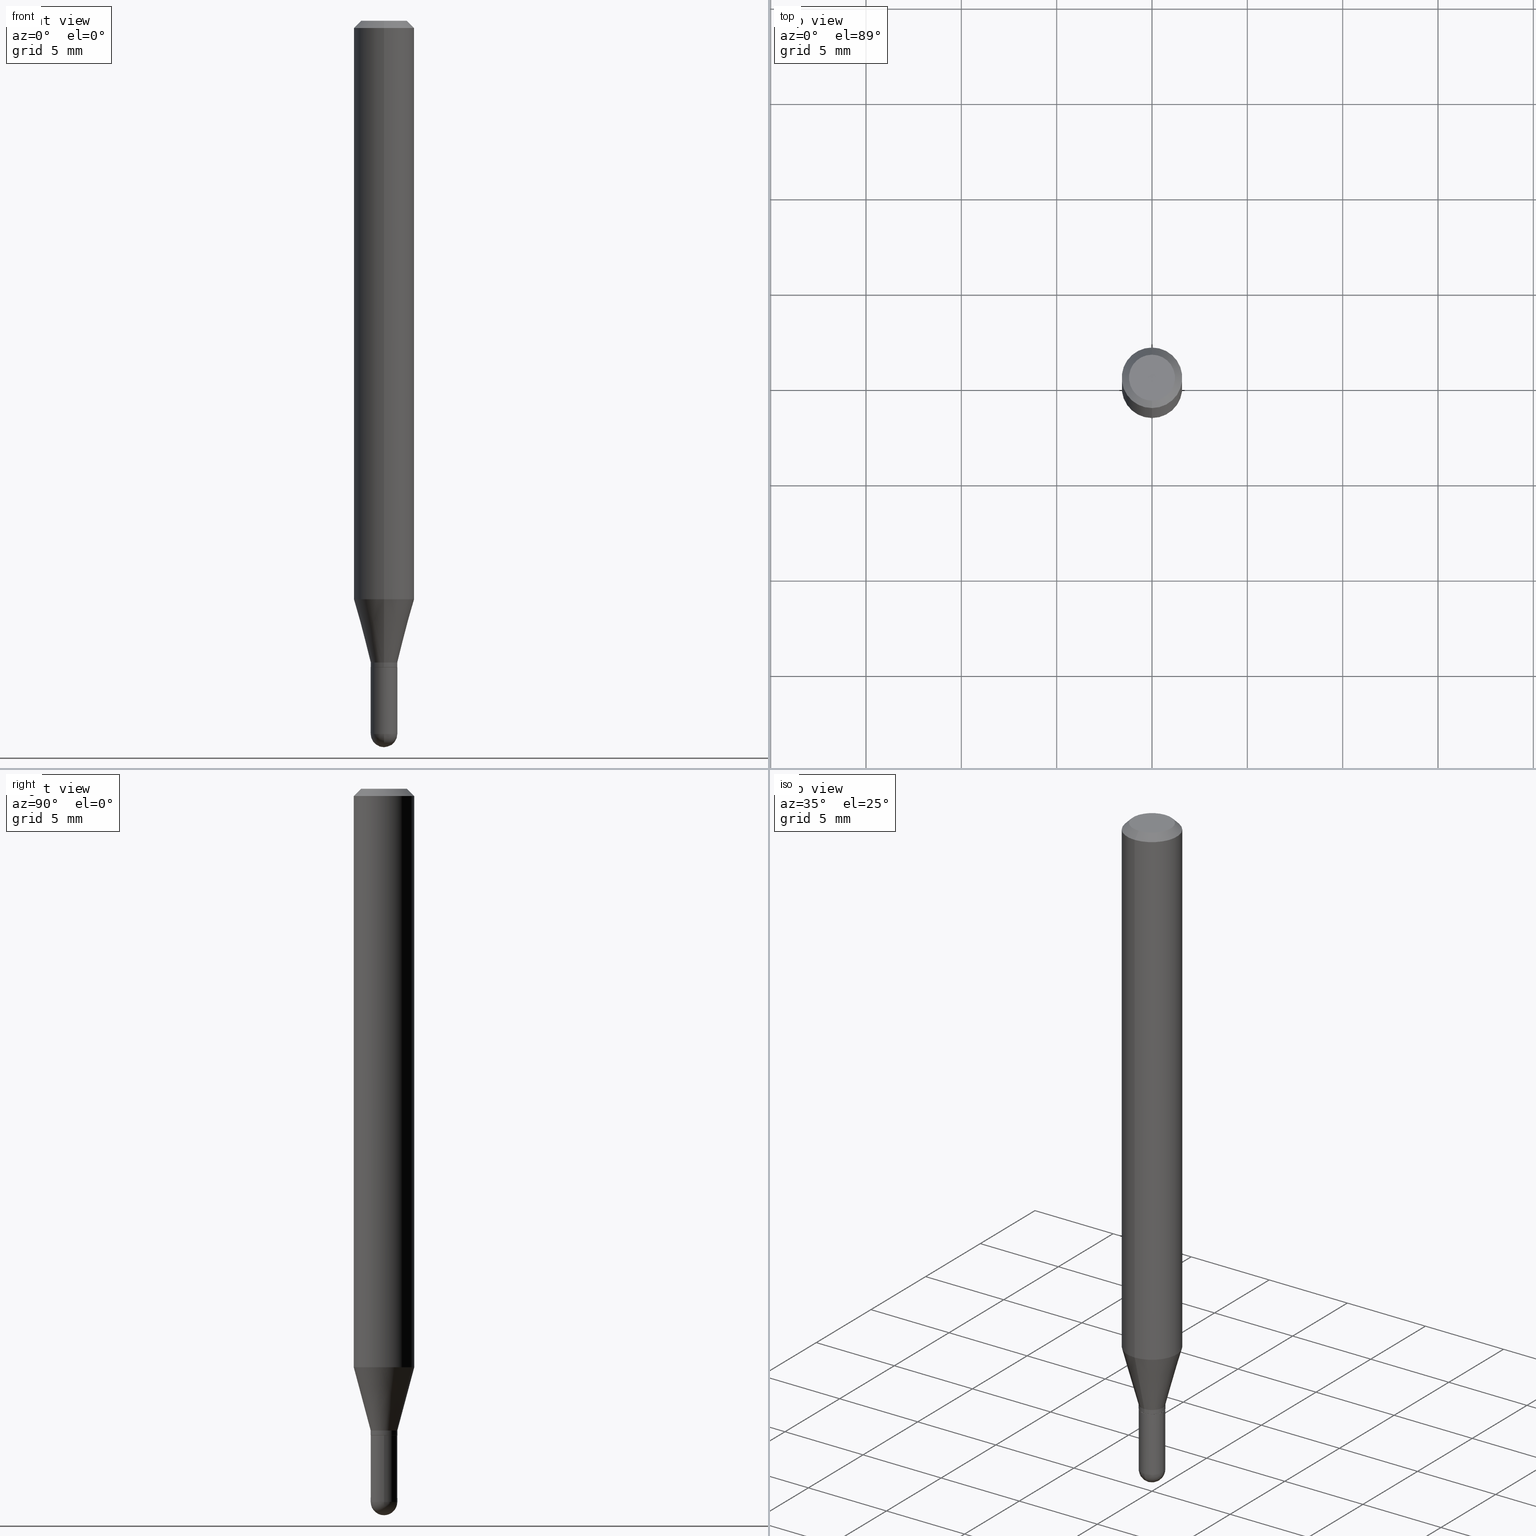
[diagram: canonical four-view strip — front | top / right | iso, engineering-drawing reading convention]
A machine part, canonical four-view strip (front | top / right | iso — engineering-drawing reading convention). The complete STEP part file that produces these views, byte-faithful:
ISO-10303-21;
HEADER;
FILE_DESCRIPTION (( 'STEP AP203' ),
    '1' );
FILE_NAME ('00932.STEP',
    '2024-03-07T19:00:23',
    ( '' ),
    ( '' ),
    'SwSTEP 2.0',
    'SolidWorks 2023',
    '' );
FILE_SCHEMA (( 'CONFIG_CONTROL_DESIGN' ));
ENDSEC;

DATA;
#1 = AXIS2_PLACEMENT_3D ( 'NONE', #150, #463, #116 ) ;
#2 = CC_DESIGN_PERSON_AND_ORGANIZATION_ASSIGNMENT ( #404, #187, ( #276 ) ) ;
#3 = DIRECTION ( 'NONE',  ( 6.982962677686265922E-15, 1.000000000000000000, -3.483106191921935554E-15 ) ) ;
#4 = CIRCLE ( 'NONE', #433, 0.02750000000000000708 ) ;
#5 = DIRECTION ( 'NONE',  ( 5.024295867788190974E-15, 0.7071067811865681119, 0.7071067811865270336 ) ) ;
#6 = PERSON_AND_ORGANIZATION_ROLE ( 'creator' ) ;
#7 = ORIENTED_EDGE ( 'NONE', *, *, #407, .T. ) ;
#8 = DIRECTION ( 'NONE',  ( -1.000000000000000000, 6.982962677686265922E-15, -4.876176775795935793E-29 ) ) ;
#9 = VERTEX_POINT ( 'NONE', #379 ) ;
#10 = CALENDAR_DATE ( 2024, 7, 3 ) ;
#11 = PRODUCT_DEFINITION ( 'UNKNOWN', '', #276, #229 ) ;
#12 = ORIENTED_EDGE ( 'NONE', *, *, #151, .F. ) ;
#13 = DIRECTION ( 'NONE',  ( -6.982962677686265922E-15, -1.000000000000000000, 3.491503948630130135E-15 ) ) ;
#14 = ORIENTED_EDGE ( 'NONE', *, *, #201, .F. ) ;
#15 = AXIS2_PLACEMENT_3D ( 'NONE', #211, #358, #3 ) ;
#16 = VERTEX_POINT ( 'NONE', #313 ) ;
#17 = LINE ( 'NONE', #183, #63 ) ;
#18 = ORIENTED_EDGE ( 'NONE', *, *, #237, .F. ) ;
#19 = COORDINATED_UNIVERSAL_TIME_OFFSET ( 5, 0, .BEHIND. ) ;
#20 = FACE_OUTER_BOUND ( 'NONE', #325, .T. ) ;
#21 = ORIENTED_EDGE ( 'NONE', *, *, #278, .F. ) ;
#22 = PERSON_AND_ORGANIZATION ( #501, #285 ) ;
#23 = VERTEX_POINT ( 'NONE', #231 ) ;
#24 = CARTESIAN_POINT ( 'NONE',  ( -1.920314736363717528E-16, -0.02749999999999992034, 9.601635858732831000E-17 ) ) ;
#25 = EDGE_CURVE ( 'NONE', #149, #61, #391, .T. ) ;
#26 = APPROVAL_STATUS ( 'not_yet_approved' ) ;
#27 = AXIS2_PLACEMENT_3D ( 'NONE', #375, #217, #177 ) ;
#28 = CARTESIAN_POINT ( 'NONE',  ( 3.668179526782907853E-31, -5.237255922945198530E-17, -0.01500000000000000812 ) ) ;
#29 = LOCAL_TIME ( 14, 0, 23.00000000000000000, #19 ) ;
#30 = DIRECTION ( 'NONE',  ( -2.445453017855270407E-29, 3.491503948630130135E-15, 1.000000000000000000 ) ) ;
#31 = DIRECTION ( 'NONE',  ( 6.982962677686265922E-15, 1.000000000000000000, -3.483106191921935554E-15 ) ) ;
#32 = DIRECTION ( 'NONE',  ( -2.445468806185136597E-29, 3.491481338843145583E-15, 1.000000000000000000 ) ) ;
#33 = EDGE_CURVE ( 'NONE', #333, #337, #461, .T. ) ;
#34 = AXIS2_PLACEMENT_3D ( 'NONE', #270, #188, #241 ) ;
#35 =( GEOMETRIC_REPRESENTATION_CONTEXT ( 3 ) GLOBAL_UNCERTAINTY_ASSIGNED_CONTEXT ( ( #62 ) ) GLOBAL_UNIT_ASSIGNED_CONTEXT ( ( #115, #197, #295 ) ) REPRESENTATION_CONTEXT ( 'NONE', 'WORKASPACE' ) );
#36 = DIRECTION ( 'NONE',  ( -2.445453017855270407E-29, 3.491503948630130135E-15, 1.000000000000000000 ) ) ;
#37 = DIRECTION ( 'NONE',  ( 1.000000000000000000, -6.982962677686279332E-15, 0.000000000000000000 ) ) ;
#38 = ADVANCED_FACE ( 'NONE', ( #109 ), #502, .F. ) ;
#39 = CIRCLE ( 'NONE', #199, 0.06250000000000000000 ) ;
#40 = DIRECTION ( 'NONE',  ( 1.000000000000000000, -6.982962677686277755E-15, 0.000000000000000000 ) ) ;
#41 = APPROVAL_STATUS ( 'not_yet_approved' ) ;
#42 = DIRECTION ( 'NONE',  ( -2.445453017855270407E-29, 3.491503948630130135E-15, 1.000000000000000000 ) ) ;
#43 = EDGE_CURVE ( 'NONE', #221, #57, #418, .T. ) ;
#44 = FACE_OUTER_BOUND ( 'NONE', #218, .T. ) ;
#45 = VERTEX_POINT ( 'NONE', #154 ) ;
#46 = CIRCLE ( 'NONE', #72, 0.02750000000000000014 ) ;
#47 = DIRECTION ( 'NONE',  ( 1.000000000000000000, -6.982962677686277755E-15, 0.000000000000000000 ) ) ;
#48 = AXIS2_PLACEMENT_3D ( 'NONE', #289, #436, #51 ) ;
#49 = APPROVAL_DATE_TIME ( #81, #432 ) ;
#50 = ORIENTED_EDGE ( 'NONE', *, *, #254, .T. ) ;
#51 = DIRECTION ( 'NONE',  ( 1.000000000000000000, -6.982962677686265922E-15, 4.876176775795935232E-29 ) ) ;
#52 = ORIENTED_EDGE ( 'NONE', *, *, #286, .F. ) ;
#53 = ADVANCED_FACE ( 'NONE', ( #342 ), #347, .T. ) ;
#54 = DIRECTION ( 'NONE',  ( -6.982962677686265922E-15, -1.000000000000000000, 0.000000000000000000 ) ) ;
#55 = PERSON_AND_ORGANIZATION_ROLE ( 'classification_officer' ) ;
#56 = DIRECTION ( 'NONE',  ( -2.445453017855270407E-29, 3.491503948630130135E-15, 1.000000000000000000 ) ) ;
#57 = VERTEX_POINT ( 'NONE', #234 ) ;
#58 = CARTESIAN_POINT ( 'NONE',  ( 3.240225248658233717E-29, -4.626242731934923858E-15, -1.325000000000000178 ) ) ;
#59 = CALENDAR_DATE ( 2024, 7, 3 ) ;
#60 = DIRECTION ( 'NONE',  ( -2.445453017855270407E-29, 3.491503948630129740E-15, 1.000000000000000000 ) ) ;
#61 = VERTEX_POINT ( 'NONE', #308 ) ;
#62 = UNCERTAINTY_MEASURE_WITH_UNIT (LENGTH_MEASURE( 1.000000000000000082E-05 ), #115, 'distance_accuracy_value', 'NONE');
#63 = VECTOR ( 'NONE', #139, 39.37007874015748143 ) ;
#64 = CC_DESIGN_APPROVAL ( #388, ( #323 ) ) ;
#65 = ORIENTED_EDGE ( 'NONE', *, *, #245, .T. ) ;
#66 = CARTESIAN_POINT ( 'NONE',  ( -0.02750000000000000708, 1.953992523340276014E-16, -1.352707149820099356E-30 ) ) ;
#67 = ORIENTED_EDGE ( 'NONE', *, *, #439, .T. ) ;
#68 = APPROVAL ( #414, 'UNSPECIFIED' ) ;
#69 = CARTESIAN_POINT ( 'NONE',  ( 3.840629472727447874E-16, 0.04749999999999999362, -1.747056831868805136E-16 ) ) ;
#70 = ORIENTED_EDGE ( 'NONE', *, *, #151, .T. ) ;
#71 = DIRECTION ( 'NONE',  ( 1.000000000000000000, -6.982962677686265922E-15, 4.876176775795935232E-29 ) ) ;
#72 = AXIS2_PLACEMENT_3D ( 'NONE', #510, #210, #389 ) ;
#73 = CIRCLE ( 'NONE', #371, 0.02749999999999996197 ) ;
#74 = LINE ( 'NONE', #153, #157 ) ;
#75 = ADVANCED_FACE ( 'NONE', ( #193 ), #417, .T. ) ;
#76 = ORIENTED_EDGE ( 'NONE', *, *, #194, .F. ) ;
#77 = CONICAL_SURFACE ( 'NONE', #310, 0.02749999999999992034, 0.2617993877991506846 ) ;
#78 = APPROVAL_PERSON_ORGANIZATION ( #511, #68, #92 ) ;
#79 = DIRECTION ( 'NONE',  ( -2.445453017855270407E-29, 3.491503948630130135E-15, 1.000000000000000000 ) ) ;
#80 = CC_DESIGN_DATE_AND_TIME_ASSIGNMENT ( #455, #141, ( #323 ) ) ;
#81 = DATE_AND_TIME ( #437, #243 ) ;
#82 = CARTESIAN_POINT ( 'NONE',  ( 3.264700856257157760E-29, -4.661127587355599122E-15, -1.335000000000000187 ) ) ;
#83 = VECTOR ( 'NONE', #346, 39.37007874015748143 ) ;
#84 = FACE_OUTER_BOUND ( 'NONE', #178, .T. ) ;
#85 = EDGE_CURVE ( 'NONE', #9, #57, #74, .T. ) ;
#86 = CARTESIAN_POINT ( 'NONE',  ( 3.598601109812370247E-29, -5.144574050144187163E-15, -1.472500000000000142 ) ) ;
#87 = CARTESIAN_POINT ( 'NONE',  ( -4.364351673553912750E-16, -0.06250000000000005551, -0.01499999999999979128 ) ) ;
#88 = CARTESIAN_POINT ( 'NONE',  ( 0.000000000000000000, 0.000000000000000000, 0.000000000000000000 ) ) ;
#89 = AXIS2_PLACEMENT_3D ( 'NONE', #282, #410, #47 ) ;
#90 = DIRECTION ( 'NONE',  ( -1.000000000000000000, 6.982962677686265922E-15, -4.883557194083112901E-29 ) ) ;
#91 = ORIENTED_EDGE ( 'NONE', *, *, #311, .T. ) ;
#92 = APPROVAL_ROLE ( '' ) ;
#93 = MANIFOLD_SOLID_BREP ( 'Body-Move/Copy2[2]', #334 ) ;
#94 = ORIENTED_EDGE ( 'NONE', *, *, #470, .F. ) ;
#95 = CARTESIAN_POINT ( 'NONE',  ( 3.598601109812370247E-29, -5.144574050144187163E-15, -1.472500000000000142 ) ) ;
#96 = EDGE_LOOP ( 'NONE', ( #362, #186 ) ) ;
#97 = ORIENTED_EDGE ( 'NONE', *, *, #383, .F. ) ;
#98 = CARTESIAN_POINT ( 'NONE',  ( 0.02750000000000000014, -4.853159060991972403E-15, -1.335000000000000187 ) ) ;
#99 = ORIENTED_EDGE ( 'NONE', *, *, #407, .F. ) ;
#100 = CARTESIAN_POINT ( 'NONE',  ( 3.240225248658233717E-29, -4.626242731934923858E-15, -1.325000000000000178 ) ) ;
#101 = SHAPE_DEFINITION_REPRESENTATION ( #465, #318 ) ;
#102 = DIRECTION ( 'NONE',  ( 4.937700262164548042E-15, 0.7071067811865451302, -0.7071067811865499042 ) ) ;
#103 = DIRECTION ( 'NONE',  ( -2.445453017855270407E-29, 3.491503948630130135E-15, 1.000000000000000000 ) ) ;
#104 = DATE_AND_TIME ( #233, #356 ) ;
#105 = VECTOR ( 'NONE', #491, 39.37007874015748143 ) ;
#106 = CC_DESIGN_PERSON_AND_ORGANIZATION_ASSIGNMENT ( #261, #493, ( #276 ) ) ;
#107 = ORIENTED_EDGE ( 'NONE', *, *, #439, .F. ) ;
#108 = ORIENTED_EDGE ( 'NONE', *, *, #43, .T. ) ;
#109 = FACE_OUTER_BOUND ( 'NONE', #96, .T. ) ;
#110 = DIRECTION ( 'NONE',  ( -4.937700262164674260E-15, -0.7071067811865632269, 0.7071067811865319186 ) ) ;
#111 = ORIENTED_EDGE ( 'NONE', *, *, #394, .F. ) ;
#112 = EDGE_CURVE ( 'NONE', #309, #45, #190, .T. ) ;
#113 = AXIS2_PLACEMENT_3D ( 'NONE', #434, #429, #202 ) ;
#114 = EDGE_LOOP ( 'NONE', ( #446, #132, #50, #70, #373 ) ) ;
#115 =( CONVERSION_BASED_UNIT ( 'INCH', #200 ) LENGTH_UNIT ( ) NAMED_UNIT ( #504 ) );
#116 = DIRECTION ( 'NONE',  ( 6.982962677686265922E-15, 1.000000000000000000, 0.000000000000000000 ) ) ;
#117 = AXIS2_PLACEMENT_3D ( 'NONE', #305, #103, #485 ) ;
#118 = AXIS2_PLACEMENT_3D ( 'NONE', #95, #90, #256 ) ;
#119 = EDGE_CURVE ( 'NONE', #376, #225, #164, .T. ) ;
#120 = AXIS2_PLACEMENT_3D ( 'NONE', #475, #469, #321 ) ;
#121 = PERSON_AND_ORGANIZATION ( #501, #285 ) ;
#122 = CC_DESIGN_DATE_AND_TIME_ASSIGNMENT ( #481, #204, ( #11 ) ) ;
#123 = DIRECTION ( 'NONE',  ( -2.445453017855270407E-29, 3.491503948630130135E-15, 1.000000000000000000 ) ) ;
#124 = AXIS2_PLACEMENT_3D ( 'NONE', #458, #196, #351 ) ;
#125 = AXIS2_PLACEMENT_3D ( 'NONE', #86, #317, #162 ) ;
#126 = CC_DESIGN_APPROVAL ( #68, ( #276 ) ) ;
#127 = LINE ( 'NONE', #203, #191 ) ;
#128 = DIRECTION ( 'NONE',  ( -7.105427357601001070E-15, -1.000000000000000000, 0.000000000000000000 ) ) ;
#129 = APPLICATION_PROTOCOL_DEFINITION ( 'international standard', 'config_control_design', 1994, #208 ) ;
#130 = EDGE_LOOP ( 'NONE', ( #107, #480, #147, #413 ) ) ;
#131 = LINE ( 'NONE', #405, #158 ) ;
#132 = ORIENTED_EDGE ( 'NONE', *, *, #470, .T. ) ;
#133 = EDGE_CURVE ( 'NONE', #403, #9, #449, .T. ) ;
#134 = CARTESIAN_POINT ( 'NONE',  ( 4.440892098500920012E-16, 0.06249999999999995143, -0.01500000000000022669 ) ) ;
#135 = EDGE_LOOP ( 'NONE', ( #300, #67, #257, #266 ) ) ;
#136 = LOCAL_TIME ( 14, 0, 23.00000000000000000, #174 ) ;
#137 = LINE ( 'NONE', #454, #507 ) ;
#138 = ORIENTED_EDGE ( 'NONE', *, *, #505, .T. ) ;
#139 = DIRECTION ( 'NONE',  ( -2.445453017855270407E-29, 3.491503948630129740E-15, 1.000000000000000000 ) ) ;
#140 = ORIENTED_EDGE ( 'NONE', *, *, #278, .T. ) ;
#141 = DATE_TIME_ROLE ( 'classification_date' ) ;
#142 = DIRECTION ( 'NONE',  ( -6.982962677686265922E-15, -1.000000000000000000, 0.000000000000000000 ) ) ;
#143 = EDGE_LOOP ( 'NONE', ( #18, #108, #91, #490 ) ) ;
#144 = EDGE_CURVE ( 'NONE', #57, #221, #175, .T. ) ;
#145 = DATE_AND_TIME ( #10, #29 ) ;
#146 = DIRECTION ( 'NONE',  ( -2.445453017855270407E-29, 3.491503948630130135E-15, 1.000000000000000000 ) ) ;
#147 = ORIENTED_EDGE ( 'NONE', *, *, #85, .T. ) ;
#148 = AXIS2_PLACEMENT_3D ( 'NONE', #423, #424, #274 ) ;
#149 = VERTEX_POINT ( 'NONE', #169 ) ;
#150 = CARTESIAN_POINT ( 'NONE',  ( 3.598601109812370247E-29, -5.144574050144187163E-15, -1.472500000000000142 ) ) ;
#151 = EDGE_CURVE ( 'NONE', #16, #301, #137, .T. ) ;
#152 = FACE_OUTER_BOUND ( 'NONE', #482, .T. ) ;
#153 = CARTESIAN_POINT ( 'NONE',  ( -1.920314736363393602E-16, -0.02750000000000454858, -1.325000000000000178 ) ) ;
#154 = CARTESIAN_POINT ( 'NONE',  ( -1.885399922974965256E-16, -0.02700000000000466263, -1.335000000000000187 ) ) ;
#155 = ADVANCED_FACE ( 'NONE', ( #328 ), #77, .T. ) ;
#156 = CARTESIAN_POINT ( 'NONE',  ( 1.953992523340589093E-16, 0.02749999999999517067, -1.334500000000000242 ) ) ;
#157 = VECTOR ( 'NONE', #239, 39.37007874015748143 ) ;
#158 = VECTOR ( 'NONE', #60, 39.37007874015748143 ) ;
#159 = APPROVAL_PERSON_ORGANIZATION ( #219, #388, #368 ) ;
#160 = DIRECTION ( 'NONE',  ( 1.000000000000000000, 0.000000000000000000, 0.000000000000000000 ) ) ;
#161 = ADVANCED_FACE ( 'NONE', ( #192 ), #369, .T. ) ;
#162 = DIRECTION ( 'NONE',  ( 6.982962677686265922E-15, 1.000000000000000000, 0.000000000000000000 ) ) ;
#163 = CARTESIAN_POINT ( 'NONE',  ( 3.264679778836786132E-29, -4.661157771421224233E-15, -1.335000000000000187 ) ) ;
#164 = CIRCLE ( 'NONE', #235, 0.02749999999999992381 ) ;
#165 = CIRCLE ( 'NONE', #393, 0.04749999999999999362 ) ;
#166 = DIRECTION ( 'NONE',  ( -2.445453017855270407E-29, 3.491503948630129740E-15, 1.000000000000000000 ) ) ;
#167 = VERTEX_POINT ( 'NONE', #251 ) ;
#168 = CARTESIAN_POINT ( 'NONE',  ( 1.918465386552596625E-16, 0.02699999999999533676, -1.335000000000000187 ) ) ;
#169 = CARTESIAN_POINT ( 'NONE',  ( 3.667027355630083166E-29, -5.238905897613546385E-15, -1.500000000000000222 ) ) ;
#170 = ADVANCED_FACE ( 'NONE', ( #472 ), #426, .T. ) ;
#171 = ORIENTED_EDGE ( 'NONE', *, *, #194, .T. ) ;
#172 = DIRECTION ( 'NONE',  ( -2.445453017855270407E-29, 3.491503948630130135E-15, 1.000000000000000000 ) ) ;
#173 = ORIENTED_EDGE ( 'NONE', *, *, #25, .F. ) ;
#174 = COORDINATED_UNIVERSAL_TIME_OFFSET ( 5, 0, .BEHIND. ) ;
#175 = CIRCLE ( 'NONE', #117, 0.06250000000000000000 ) ;
#176 = APPLICATION_CONTEXT ( 'configuration controlled 3d designs of mechanical parts and assemblies' ) ;
#177 = DIRECTION ( 'NONE',  ( -6.982962677686266711E-15, -1.000000000000000000, 3.491503948630130135E-15 ) ) ;
#178 = EDGE_LOOP ( 'NONE', ( #408, #140, #269, #445 ) ) ;
#179 = DIRECTION ( 'NONE',  ( -2.445468806185136877E-29, 3.491481338843145188E-15, 1.000000000000000000 ) ) ;
#180 = APPROVAL_DATE_TIME ( #145, #388 ) ;
#181 = VERTEX_POINT ( 'NONE', #314 ) ;
#182 = ADVANCED_FACE ( 'NONE', ( #248 ), #281, .T. ) ;
#183 = CARTESIAN_POINT ( 'NONE',  ( 1.953992523340269605E-16, 0.02749999999999992034, -9.601635858732831000E-17 ) ) ;
#184 = ORIENTED_EDGE ( 'NONE', *, *, #245, .F. ) ;
#185 = CARTESIAN_POINT ( 'NONE',  ( 3.197442310920756402E-16, 0.02749999999999529210, -1.325000000000000178 ) ) ;
#186 = ORIENTED_EDGE ( 'NONE', *, *, #486, .T. ) ;
#187 = PERSON_AND_ORGANIZATION_ROLE ( 'design_supplier' ) ;
#188 = DIRECTION ( 'NONE',  ( 2.445453017855270127E-29, -3.491503948630129740E-15, -1.000000000000000000 ) ) ;
#189 = LINE ( 'NONE', #378, #387 ) ;
#190 = CIRCLE ( 'NONE', #442, 0.02699999999999999969 ) ;
#191 = VECTOR ( 'NONE', #166, 39.37007874015748143 ) ;
#192 = FACE_OUTER_BOUND ( 'NONE', #135, .T. ) ;
#193 = FACE_OUTER_BOUND ( 'NONE', #143, .T. ) ;
#194 = EDGE_CURVE ( 'NONE', #301, #181, #46, .T. ) ;
#195 = DIRECTION ( 'NONE',  ( -6.982962677686265133E-15, -1.000000000000000000, 0.000000000000000000 ) ) ;
#196 = DIRECTION ( 'NONE',  ( -2.445453017855270407E-29, 3.491503948630130135E-15, 1.000000000000000000 ) ) ;
#197 =( NAMED_UNIT ( * ) PLANE_ANGLE_UNIT ( ) SI_UNIT ( $, .RADIAN. ) );
#198 = AXIS2_PLACEMENT_3D ( 'NONE', #58, #367, #54 ) ;
#199 = AXIS2_PLACEMENT_3D ( 'NONE', #402, #56, #220 ) ;
#200 = LENGTH_MEASURE_WITH_UNIT ( LENGTH_MEASURE( 0.02539999999999999897 ), #416 );
#201 = EDGE_CURVE ( 'NONE', #225, #376, #302, .T. ) ;
#202 = DIRECTION ( 'NONE',  ( -6.982962677686265922E-15, -1.000000000000000000, 0.000000000000000000 ) ) ;
#203 = CARTESIAN_POINT ( 'NONE',  ( 4.440892098500625669E-16, 0.06250000000000000000, -2.182189967893831334E-16 ) ) ;
#204 = DATE_TIME_ROLE ( 'creation_date' ) ;
#205 = AXIS2_PLACEMENT_3D ( 'NONE', #415, #32, #71 ) ;
#206 = EDGE_CURVE ( 'NONE', #181, #301, #315, .T. ) ;
#207 = DIRECTION ( 'NONE',  ( -2.445468806185136597E-29, 3.491481338843145583E-15, 1.000000000000000000 ) ) ;
#208 = APPLICATION_CONTEXT ( 'configuration controlled 3d designs of mechanical parts and assemblies' ) ;
#209 = COORDINATED_UNIVERSAL_TIME_OFFSET ( 5, 0, .BEHIND. ) ;
#210 = DIRECTION ( 'NONE',  ( -2.445468806185136597E-29, 3.491481338843145583E-15, 1.000000000000000000 ) ) ;
#211 = CARTESIAN_POINT ( 'NONE',  ( 3.668179526782907853E-31, -5.237255922945198530E-17, -0.01500000000000000812 ) ) ;
#212 = AXIS2_PLACEMENT_3D ( 'NONE', #395, #42, #246 ) ;
#213 = AXIS2_PLACEMENT_3D ( 'NONE', #506, #471, #40 ) ;
#214 = DIRECTION ( 'NONE',  ( -6.982962677686265922E-15, -1.000000000000000000, 3.491503948630130529E-15 ) ) ;
#215 = DIRECTION ( 'NONE',  ( -6.982962677686265922E-15, -1.000000000000000000, 0.000000000000000000 ) ) ;
#216 = ORIENTED_EDGE ( 'NONE', *, *, #357, .T. ) ;
#217 = DIRECTION ( 'NONE',  ( -2.445453017855270407E-29, 3.491503948630130135E-15, 1.000000000000000000 ) ) ;
#218 = EDGE_LOOP ( 'NONE', ( #456, #273, #498, #111 ) ) ;
#219 = PERSON_AND_ORGANIZATION ( #501, #285 ) ;
#220 = DIRECTION ( 'NONE',  ( -6.982962677686265922E-15, -1.000000000000000000, 3.483106191921935554E-15 ) ) ;
#221 = VERTEX_POINT ( 'NONE', #512 ) ;
#222 = ADVANCED_FACE ( 'NONE', ( #84 ), #392, .T. ) ;
#223 = AXIS2_PLACEMENT_3D ( 'NONE', #268, #350, #31 ) ;
#224 = CARTESIAN_POINT ( 'NONE',  ( 0.000000000000000000, 0.000000000000000000, 0.000000000000000000 ) ) ;
#225 = VERTEX_POINT ( 'NONE', #156 ) ;
#226 = VERTEX_POINT ( 'NONE', #473 ) ;
#227 = DIRECTION ( 'NONE',  ( -2.445468806185136877E-29, 3.491481338843145188E-15, 1.000000000000000000 ) ) ;
#228 = ORIENTED_EDGE ( 'NONE', *, *, #201, .T. ) ;
#229 = DESIGN_CONTEXT ( 'detailed design', #208, 'design' ) ;
#230 = COORDINATED_UNIVERSAL_TIME_OFFSET ( 5, 0, .BEHIND. ) ;
#231 = CARTESIAN_POINT ( 'NONE',  ( -3.773273898774340269E-16, -0.04749999999999999362, 1.569871919329818196E-16 ) ) ;
#232 = FACE_OUTER_BOUND ( 'NONE', #263, .T. ) ;
#233 = CALENDAR_DATE ( 2024, 7, 3 ) ;
#234 = CARTESIAN_POINT ( 'NONE',  ( -4.364351673553625802E-16, -0.06250000000000417721, -1.194378221735089562 ) ) ;
#235 = AXIS2_PLACEMENT_3D ( 'NONE', #348, #460, #215 ) ;
#236 = VECTOR ( 'NONE', #102, 39.37007874015748143 ) ;
#237 = EDGE_CURVE ( 'NONE', #221, #333, #127, .T. ) ;
#238 = DIRECTION ( 'NONE',  ( -6.982962677686265922E-15, -1.000000000000000000, 0.000000000000000000 ) ) ;
#239 = DIRECTION ( 'NONE',  ( -1.807323732225332900E-15, -0.2588190451025185745, 0.9659258262890689783 ) ) ;
#240 = CARTESIAN_POINT ( 'NONE',  ( 3.264679778836786132E-29, -4.661157771421224233E-15, -1.335000000000000187 ) ) ;
#241 = DIRECTION ( 'NONE',  ( 6.982962677686265922E-15, 1.000000000000000000, -3.491503948630129740E-15 ) ) ;
#242 = ADVANCED_FACE ( 'NONE', ( #284 ), #509, .T. ) ;
#243 = LOCAL_TIME ( 14, 0, 23.00000000000000000, #288 ) ;
#244 = DIRECTION ( 'NONE',  ( -6.982962677686265922E-15, -1.000000000000000000, 0.000000000000000000 ) ) ;
#245 = EDGE_CURVE ( 'NONE', #16, #61, #508, .T. ) ;
#246 = DIRECTION ( 'NONE',  ( -6.982962677686265133E-15, -1.000000000000000000, 0.000000000000000000 ) ) ;
#247 = MECHANICAL_CONTEXT ( 'NONE', #176, 'mechanical' ) ;
#248 = FACE_OUTER_BOUND ( 'NONE', #492, .T. ) ;
#249 = DIRECTION ( 'NONE',  ( 0.000000000000000000, 0.000000000000000000, 1.000000000000000000 ) ) ;
#250 = CIRCLE ( 'NONE', #89, 0.02750000000000000708 ) ;
#251 = CARTESIAN_POINT ( 'NONE',  ( -0.02750000000000000708, -4.705767677067038393E-15, -1.472500000000000142 ) ) ;
#252 = APPLICATION_PROTOCOL_DEFINITION ( 'international standard', 'config_control_design', 1994, #176 ) ;
#253 = ORIENTED_EDGE ( 'NONE', *, *, #271, .T. ) ;
#254 = EDGE_CURVE ( 'NONE', #226, #16, #4, .T. ) ;
#255 = DIRECTION ( 'NONE',  ( -2.445453017855270407E-29, 3.491503948630130135E-15, 1.000000000000000000 ) ) ;
#256 = DIRECTION ( 'NONE',  ( 6.982962677686265922E-15, 1.000000000000000000, 0.000000000000000000 ) ) ;
#257 = ORIENTED_EDGE ( 'NONE', *, *, #144, .F. ) ;
#258 = CARTESIAN_POINT ( 'NONE',  ( 1.920314736364049589E-16, 0.02749999999999534067, -1.335000000000000187 ) ) ;
#259 = ORIENTED_EDGE ( 'NONE', *, *, #133, .F. ) ;
#260 = ADVANCED_FACE ( 'NONE', ( #44 ), #467, .T. ) ;
#261 = PERSON_AND_ORGANIZATION ( #501, #285 ) ;
#262 = CARTESIAN_POINT ( 'NONE',  ( 1.936228954946596434E-16, 0.02699999999999533676, -1.335000000000000187 ) ) ;
#263 = EDGE_LOOP ( 'NONE', ( #99, #335 ) ) ;
#264 = CIRCLE ( 'NONE', #462, 0.02749999999999992034 ) ;
#265 = LINE ( 'NONE', #66, #292 ) ;
#266 = ORIENTED_EDGE ( 'NONE', *, *, #85, .F. ) ;
#267 = ORIENTED_EDGE ( 'NONE', *, *, #286, .T. ) ;
#268 = CARTESIAN_POINT ( 'NONE',  ( 3.668179526782907853E-31, -5.237255922945198530E-17, -0.01500000000000000812 ) ) ;
#269 = ORIENTED_EDGE ( 'NONE', *, *, #374, .F. ) ;
#270 = CARTESIAN_POINT ( 'NONE',  ( 3.316907271900976096E-16, 0.04749999999999999362, -1.702760603734058278E-16 ) ) ;
#271 = EDGE_CURVE ( 'NONE', #61, #167, #250, .T. ) ;
#272 = DIRECTION ( 'NONE',  ( -6.982962677686265922E-15, -1.000000000000000000, 3.491503948630129740E-15 ) ) ;
#273 = ORIENTED_EDGE ( 'NONE', *, *, #293, .T. ) ;
#274 = DIRECTION ( 'NONE',  ( 1.000000000000000000, -6.982962677686277755E-15, 0.000000000000000000 ) ) ;
#275 = AXIS2_PLACEMENT_3D ( 'NONE', #82, #390, #37 ) ;
#276 = PRODUCT_DEFINITION_FORMATION_WITH_SPECIFIED_SOURCE ( 'ANY', '', #428, .NOT_KNOWN. ) ;
#277 = ORIENTED_EDGE ( 'NONE', *, *, #311, .F. ) ;
#278 = EDGE_CURVE ( 'NONE', #225, #403, #17, .T. ) ;
#279 = DIRECTION ( 'NONE',  ( -6.982962677686265922E-15, -1.000000000000000000, 3.483106191921935554E-15 ) ) ;
#280 = LINE ( 'NONE', #303, #322 ) ;
#281 = CONICAL_SURFACE ( 'NONE', #466, 0.02699999999999999969, 0.7853981633974739252 ) ;
#282 = CARTESIAN_POINT ( 'NONE',  ( 3.600952817107613706E-29, -5.141206271446532325E-15, -1.472500000000000142 ) ) ;
#283 = ADVANCED_FACE ( 'NONE', ( #479 ), #397, .T. ) ;
#284 = FACE_OUTER_BOUND ( 'NONE', #406, .T. ) ;
#285 = ORGANIZATION ( 'UNSPECIFIED', 'UNSPECIFIED', '' ) ;
#286 = EDGE_CURVE ( 'NONE', #149, #226, #73, .T. ) ;
#287 = CYLINDRICAL_SURFACE ( 'NONE', #48, 0.02750000000000000708 ) ;
#288 = COORDINATED_UNIVERSAL_TIME_OFFSET ( 5, 0, .BEHIND. ) ;
#289 = CARTESIAN_POINT ( 'NONE',  ( 0.000000000000000000, 0.000000000000000000, 0.000000000000000000 ) ) ;
#290 = DIRECTION ( 'NONE',  ( -2.445453017855270407E-29, 3.491503948630130135E-15, 1.000000000000000000 ) ) ;
#291 = AXIS2_PLACEMENT_3D ( 'NONE', #421, #123, #244 ) ;
#292 = VECTOR ( 'NONE', #227, 39.37007874015748143 ) ;
#293 = EDGE_CURVE ( 'NONE', #23, #337, #365, .T. ) ;
#294 = LINE ( 'NONE', #168, #312 ) ;
#295 =( NAMED_UNIT ( * ) SI_UNIT ( $, .STERADIAN. ) SOLID_ANGLE_UNIT ( ) );
#296 = DIRECTION ( 'NONE',  ( -1.000000000000000000, 7.105427357601001070E-15, -4.926315508542082329E-29 ) ) ;
#297 = EDGE_LOOP ( 'NONE', ( #21, #228, #443, #259 ) ) ;
#298 = ORIENTED_EDGE ( 'NONE', *, *, #399, .T. ) ;
#299 = LINE ( 'NONE', #448, #236 ) ;
#300 = ORIENTED_EDGE ( 'NONE', *, *, #374, .T. ) ;
#301 = VERTEX_POINT ( 'NONE', #98 ) ;
#302 = CIRCLE ( 'NONE', #113, 0.02749999999999992381 ) ;
#303 = CARTESIAN_POINT ( 'NONE',  ( -1.885399922974965256E-16, -0.02700000000000466263, -1.335000000000000187 ) ) ;
#304 = EDGE_LOOP ( 'NONE', ( #7, #216, #331, #478 ) ) ;
#305 = CARTESIAN_POINT ( 'NONE',  ( 2.920795826802686836E-29, -4.170176277345898913E-15, -1.194378221735089785 ) ) ;
#306 = CC_DESIGN_PERSON_AND_ORGANIZATION_ASSIGNMENT ( #361, #6, ( #11 ) ) ;
#307 = EDGE_LOOP ( 'NONE', ( #171, #366 ) ) ;
#308 = CARTESIAN_POINT ( 'NONE',  ( 1.920314736364081883E-16, 0.02749999999999484107, -1.472500000000000142 ) ) ;
#309 = VERTEX_POINT ( 'NONE', #262 ) ;
#310 = AXIS2_PLACEMENT_3D ( 'NONE', #100, #290, #238 ) ;
#311 = EDGE_CURVE ( 'NONE', #57, #337, #131, .T. ) ;
#312 = VECTOR ( 'NONE', #5, 39.37007874015748143 ) ;
#313 = CARTESIAN_POINT ( 'NONE',  ( 0.02750000000000000708, -5.093198403037438216E-15, -1.472500000000000142 ) ) ;
#314 = CARTESIAN_POINT ( 'NONE',  ( -0.02750000000000000014, -4.705767677067038393E-15, -1.335000000000000187 ) ) ;
#315 = CIRCLE ( 'NONE', #275, 0.02750000000000000014 ) ;
#316 = ADVANCED_FACE ( 'NONE', ( #332 ), #487, .T. ) ;
#317 = DIRECTION ( 'NONE',  ( -1.000000000000000000, 6.982962677686265922E-15, -4.883557194083112901E-29 ) ) ;
#318 = ADVANCED_BREP_SHAPE_REPRESENTATION ( '00932', ( #431, #93, #503 ), #35 ) ;
#319 = DIRECTION ( 'NONE',  ( 1.000000000000000000, -6.982962677686277755E-15, 0.000000000000000000 ) ) ;
#320 = CC_DESIGN_PERSON_AND_ORGANIZATION_ASSIGNMENT ( #121, #476, ( #428 ) ) ;
#321 = DIRECTION ( 'NONE',  ( -6.982962677686265922E-15, -1.000000000000000000, 3.491503948630130529E-15 ) ) ;
#322 = VECTOR ( 'NONE', #110, 39.37007874015748143 ) ;
#323 = SECURITY_CLASSIFICATION ( '', '', #497 ) ;
#324 = DIRECTION ( 'NONE',  ( -6.982962677686265133E-15, -1.000000000000000000, 0.000000000000000000 ) ) ;
#325 = EDGE_LOOP ( 'NONE', ( #401, #494, #97, #277 ) ) ;
#326 = CARTESIAN_POINT ( 'NONE',  ( 3.598601109812370247E-29, -5.144574050144187163E-15, -1.472500000000000142 ) ) ;
#327 = ORIENTED_EDGE ( 'NONE', *, *, #271, .F. ) ;
#328 = FACE_OUTER_BOUND ( 'NONE', #130, .T. ) ;
#329 = CALENDAR_DATE ( 2024, 7, 3 ) ;
#330 = ADVANCED_FACE ( 'NONE', ( #483 ), #287, .T. ) ;
#331 = ORIENTED_EDGE ( 'NONE', *, *, #119, .F. ) ;
#332 = FACE_OUTER_BOUND ( 'NONE', #438, .T. ) ;
#333 = VERTEX_POINT ( 'NONE', #134 ) ;
#334 = CLOSED_SHELL ( 'NONE', ( #222, #170, #260, #341, #161, #155, #75, #447, #38, #425, #182, #283 ) ) ;
#335 = ORIENTED_EDGE ( 'NONE', *, *, #112, .F. ) ;
#336 = FACE_OUTER_BOUND ( 'NONE', #307, .T. ) ;
#337 = VERTEX_POINT ( 'NONE', #87 ) ;
#338 = PLANE ( 'NONE',  #398 ) ;
#339 = CARTESIAN_POINT ( 'NONE',  ( 0.000000000000000000, 0.000000000000000000, 0.000000000000000000 ) ) ;
#340 = ORIENTED_EDGE ( 'NONE', *, *, #112, .T. ) ;
#341 = ADVANCED_FACE ( 'NONE', ( #20 ), #400, .T. ) ;
#342 = FACE_OUTER_BOUND ( 'NONE', #370, .T. ) ;
#343 = AXIS2_PLACEMENT_3D ( 'NONE', #500, #386, #412 ) ;
#344 = LOCAL_TIME ( 14, 0, 23.00000000000000000, #209 ) ;
#345 = CC_DESIGN_APPROVAL ( #432, ( #11 ) ) ;
#346 = DIRECTION ( 'NONE',  ( -2.445453017855270407E-29, 3.491503948630129740E-15, 1.000000000000000000 ) ) ;
#347 = CYLINDRICAL_SURFACE ( 'NONE', #205, 0.02750000000000000708 ) ;
#348 = CARTESIAN_POINT ( 'NONE',  ( 3.263457052327858904E-29, -4.659412019446908465E-15, -1.334500000000000242 ) ) ;
#349 = EDGE_CURVE ( 'NONE', #441, #23, #496, .T. ) ;
#350 = DIRECTION ( 'NONE',  ( 2.445453017855270407E-29, -3.491503948630130135E-15, -1.000000000000000000 ) ) ;
#351 = DIRECTION ( 'NONE',  ( -6.982962677686265922E-15, -1.000000000000000000, 3.491503948630130135E-15 ) ) ;
#352 = DIRECTION ( 'NONE',  ( -6.982962677686265133E-15, -1.000000000000000000, 0.000000000000000000 ) ) ;
#353 = CLOSED_SHELL ( 'NONE', ( #53, #242, #364, #316, #330 ) ) ;
#354 = PRODUCT_RELATED_PRODUCT_CATEGORY ( 'detail', '', ( #428 ) ) ;
#355 = CONICAL_SURFACE ( 'NONE', #223, 0.06250000000000000000, 0.7853981633974483900 ) ;
#356 = LOCAL_TIME ( 14, 0, 23.00000000000000000, #230 ) ;
#357 = EDGE_CURVE ( 'NONE', #309, #225, #294, .T. ) ;
#358 = DIRECTION ( 'NONE',  ( 2.445453017855270407E-29, -3.491503948630130135E-15, -1.000000000000000000 ) ) ;
#359 = CIRCLE ( 'NONE', #427, 0.02699999999999999969 ) ;
#360 = CARTESIAN_POINT ( 'NONE',  ( -4.287811248607203282E-16, -0.06250000000000005551, -0.01499999999999979128 ) ) ;
#361 = PERSON_AND_ORGANIZATION ( #501, #285 ) ;
#362 = ORIENTED_EDGE ( 'NONE', *, *, #349, .T. ) ;
#363 = DIRECTION ( 'NONE',  ( 2.438088387897960049E-29, -3.491481338843145188E-15, -1.000000000000000000 ) ) ;
#364 = ADVANCED_FACE ( 'NONE', ( #336 ), #338, .F. ) ;
#365 = LINE ( 'NONE', #360, #105 ) ;
#366 = ORIENTED_EDGE ( 'NONE', *, *, #206, .T. ) ;
#367 = DIRECTION ( 'NONE',  ( -2.445453017855270407E-29, 3.491503948630130135E-15, 1.000000000000000000 ) ) ;
#368 = APPROVAL_ROLE ( '' ) ;
#369 = CONICAL_SURFACE ( 'NONE', #291, 0.02749999999999992034, 0.2617993877991506846 ) ;
#370 = EDGE_LOOP ( 'NONE', ( #253, #298, #76, #12, #65 ) ) ;
#371 = AXIS2_PLACEMENT_3D ( 'NONE', #326, #296, #128 ) ;
#372 = DIRECTION ( 'NONE',  ( -2.445453017855270407E-29, 3.491503948630130135E-15, 1.000000000000000000 ) ) ;
#373 = ORIENTED_EDGE ( 'NONE', *, *, #206, .F. ) ;
#374 = EDGE_CURVE ( 'NONE', #9, #403, #264, .T. ) ;
#375 = CARTESIAN_POINT ( 'NONE',  ( 2.166486895434437693E-46, -3.093209108837784271E-32, -8.859245626949342400E-18 ) ) ;
#376 = VERTEX_POINT ( 'NONE', #444 ) ;
#377 = DIRECTION ( 'NONE',  ( -2.445453017855270407E-29, 3.491503948630130135E-15, 1.000000000000000000 ) ) ;
#378 = CARTESIAN_POINT ( 'NONE',  ( 1.953992523340593531E-16, 0.02749999999999529210, -1.325000000000000178 ) ) ;
#379 = CARTESIAN_POINT ( 'NONE',  ( -1.920314736363393602E-16, -0.02750000000000454858, -1.325000000000000178 ) ) ;
#380 = AXIS2_PLACEMENT_3D ( 'NONE', #28, #377, #279 ) ;
#381 = AXIS2_PLACEMENT_3D ( 'NONE', #339, #372, #214 ) ;
#382 = DIRECTION ( 'NONE',  ( -2.445453017855270127E-29, 3.491503948630129740E-15, 1.000000000000000000 ) ) ;
#383 = EDGE_CURVE ( 'NONE', #337, #333, #39, .T. ) ;
#384 = CARTESIAN_POINT ( 'NONE',  ( 3.264679778836786132E-29, -4.661157771421224233E-15, -1.335000000000000187 ) ) ;
#385 = CARTESIAN_POINT ( 'NONE',  ( 3.264679778836786132E-29, -4.661157771421224233E-15, -1.335000000000000187 ) ) ;
#386 = DIRECTION ( 'NONE',  ( -2.445453017855270407E-29, 3.491503948630130135E-15, 1.000000000000000000 ) ) ;
#387 = VECTOR ( 'NONE', #499, 39.37007874015748143 ) ;
#388 = APPROVAL ( #26, 'UNSPECIFIED' ) ;
#389 = DIRECTION ( 'NONE',  ( 1.000000000000000000, -6.982962677686279332E-15, 0.000000000000000000 ) ) ;
#390 = DIRECTION ( 'NONE',  ( -2.445468806185136597E-29, 3.491481338843145583E-15, 1.000000000000000000 ) ) ;
#391 = CIRCLE ( 'NONE', #1, 0.02749999999999996197 ) ;
#392 = CYLINDRICAL_SURFACE ( 'NONE', #120, 0.02749999999999992034 ) ;
#393 = AXIS2_PLACEMENT_3D ( 'NONE', #420, #146, #457 ) ;
#394 = EDGE_CURVE ( 'NONE', #441, #333, #299, .T. ) ;
#395 = CARTESIAN_POINT ( 'NONE',  ( 3.264679778836786132E-29, -4.661157771421224233E-15, -1.335000000000000187 ) ) ;
#396 = CARTESIAN_POINT ( 'NONE',  ( 3.600952817107613706E-29, -5.141206271446532325E-15, -1.472500000000000142 ) ) ;
#397 = CYLINDRICAL_SURFACE ( 'NONE', #381, 0.02749999999999992034 ) ;
#398 = AXIS2_PLACEMENT_3D ( 'NONE', #258, #363, #8 ) ;
#399 = EDGE_CURVE ( 'NONE', #167, #181, #265, .T. ) ;
#400 = CYLINDRICAL_SURFACE ( 'NONE', #409, 0.06250000000000000000 ) ;
#401 = ORIENTED_EDGE ( 'NONE', *, *, #144, .T. ) ;
#402 = CARTESIAN_POINT ( 'NONE',  ( 3.668179526782907853E-31, -5.237255922945198530E-17, -0.01500000000000000812 ) ) ;
#403 = VERTEX_POINT ( 'NONE', #185 ) ;
#404 = PERSON_AND_ORGANIZATION ( #501, #285 ) ;
#405 = CARTESIAN_POINT ( 'NONE',  ( -4.364351673553916201E-16, -0.06250000000000000000, 2.182189967893831334E-16 ) ) ;
#406 = EDGE_LOOP ( 'NONE', ( #173, #267, #94, #327 ) ) ;
#407 = EDGE_CURVE ( 'NONE', #45, #309, #359, .T. ) ;
#408 = ORIENTED_EDGE ( 'NONE', *, *, #119, .T. ) ;
#409 = AXIS2_PLACEMENT_3D ( 'NONE', #224, #255, #13 ) ;
#410 = DIRECTION ( 'NONE',  ( -2.445468806185136597E-29, 3.491481338843145583E-15, 1.000000000000000000 ) ) ;
#411 = ORIENTED_EDGE ( 'NONE', *, *, #394, .T. ) ;
#412 = DIRECTION ( 'NONE',  ( -6.982962677686265922E-15, -1.000000000000000000, 4.370956789862821150E-15 ) ) ;
#413 = ORIENTED_EDGE ( 'NONE', *, *, #43, .F. ) ;
#414 = APPROVAL_STATUS ( 'not_yet_approved' ) ;
#415 = CARTESIAN_POINT ( 'NONE',  ( 0.000000000000000000, 0.000000000000000000, 0.000000000000000000 ) ) ;
#416 =( LENGTH_UNIT ( ) NAMED_UNIT ( * ) SI_UNIT ( $, .METRE. ) );
#417 = CYLINDRICAL_SURFACE ( 'NONE', #124, 0.06250000000000000000 ) ;
#418 = CIRCLE ( 'NONE', #343, 0.06250000000000000000 ) ;
#419 = CIRCLE ( 'NONE', #148, 0.02750000000000000708 ) ;
#420 = CARTESIAN_POINT ( 'NONE',  ( 2.166486895434437693E-46, -3.093209108837784271E-32, -8.859245626949342400E-18 ) ) ;
#421 = CARTESIAN_POINT ( 'NONE',  ( 3.240225248658233717E-29, -4.626242731934923858E-15, -1.325000000000000178 ) ) ;
#422 = ORIENTED_EDGE ( 'NONE', *, *, #357, .F. ) ;
#423 = CARTESIAN_POINT ( 'NONE',  ( 3.600952817107613706E-29, -5.141206271446532325E-15, -1.472500000000000142 ) ) ;
#424 = DIRECTION ( 'NONE',  ( -2.445468806185136597E-29, 3.491481338843145583E-15, 1.000000000000000000 ) ) ;
#425 = ADVANCED_FACE ( 'NONE', ( #232 ), #452, .F. ) ;
#426 = CONICAL_SURFACE ( 'NONE', #212, 0.02699999999999999969, 0.7853981633974739252 ) ;
#427 = AXIS2_PLACEMENT_3D ( 'NONE', #240, #36, #352 ) ;
#428 = PRODUCT ( '00932', '00932', '', ( #247 ) ) ;
#429 = DIRECTION ( 'NONE',  ( -2.445453017855270407E-29, 3.491503948630130135E-15, 1.000000000000000000 ) ) ;
#430 = APPROVAL_ROLE ( '' ) ;
#431 = MANIFOLD_SOLID_BREP ( 'Body-Move/Copy2[1]', #353 ) ;
#432 = APPROVAL ( #41, 'UNSPECIFIED' ) ;
#433 = AXIS2_PLACEMENT_3D ( 'NONE', #396, #207, #319 ) ;
#434 = CARTESIAN_POINT ( 'NONE',  ( 3.263457052327858904E-29, -4.659412019446908465E-15, -1.334500000000000242 ) ) ;
#435 = PERSON_AND_ORGANIZATION ( #501, #285 ) ;
#436 = DIRECTION ( 'NONE',  ( -2.445468806185136597E-29, 3.491481338843145583E-15, 1.000000000000000000 ) ) ;
#437 = CALENDAR_DATE ( 2024, 7, 3 ) ;
#438 = EDGE_LOOP ( 'NONE', ( #52, #495, #184, #453 ) ) ;
#439 = EDGE_CURVE ( 'NONE', #403, #221, #189, .T. ) ;
#440 = CARTESIAN_POINT ( 'NONE',  ( 3.240225248658233717E-29, -4.626242731934923858E-15, -1.325000000000000178 ) ) ;
#441 = VERTEX_POINT ( 'NONE', #69 ) ;
#442 = AXIS2_PLACEMENT_3D ( 'NONE', #384, #30, #195 ) ;
#443 = ORIENTED_EDGE ( 'NONE', *, *, #464, .T. ) ;
#444 = CARTESIAN_POINT ( 'NONE',  ( -1.920314736363398285E-16, -0.02750000000000468042, -1.334500000000000242 ) ) ;
#445 = ORIENTED_EDGE ( 'NONE', *, *, #464, .F. ) ;
#446 = ORIENTED_EDGE ( 'NONE', *, *, #399, .F. ) ;
#447 = ADVANCED_FACE ( 'NONE', ( #152 ), #355, .T. ) ;
#448 = CARTESIAN_POINT ( 'NONE',  ( 4.364351673553919652E-16, 0.06249999999999995143, -0.01500000000000022669 ) ) ;
#449 = CIRCLE ( 'NONE', #198, 0.02749999999999992034 ) ;
#450 = ORIENTED_EDGE ( 'NONE', *, *, #33, .T. ) ;
#451 = APPROVAL_PERSON_ORGANIZATION ( #435, #432, #430 ) ;
#452 = PLANE ( 'NONE',  #474 ) ;
#453 = ORIENTED_EDGE ( 'NONE', *, *, #254, .F. ) ;
#454 = CARTESIAN_POINT ( 'NONE',  ( 0.02750000000000000708, -1.920314736363723691E-16, 1.340948613343882588E-30 ) ) ;
#455 = DATE_AND_TIME ( #59, #136 ) ;
#456 = ORIENTED_EDGE ( 'NONE', *, *, #486, .F. ) ;
#457 = DIRECTION ( 'NONE',  ( -6.982962677686266711E-15, -1.000000000000000000, 3.491503948630130135E-15 ) ) ;
#458 = CARTESIAN_POINT ( 'NONE',  ( 0.000000000000000000, 0.000000000000000000, 0.000000000000000000 ) ) ;
#459 = LINE ( 'NONE', #24, #83 ) ;
#460 = DIRECTION ( 'NONE',  ( -2.445453017855270407E-29, 3.491503948630130135E-15, 1.000000000000000000 ) ) ;
#461 = CIRCLE ( 'NONE', #380, 0.06250000000000000000 ) ;
#462 = AXIS2_PLACEMENT_3D ( 'NONE', #440, #172, #142 ) ;
#463 = DIRECTION ( 'NONE',  ( 1.000000000000000000, -6.982962677686265922E-15, 4.883557194083112340E-29 ) ) ;
#464 = EDGE_CURVE ( 'NONE', #376, #9, #459, .T. ) ;
#465 = PRODUCT_DEFINITION_SHAPE ( 'NONE', 'NONE',  #11 ) ;
#466 = AXIS2_PLACEMENT_3D ( 'NONE', #163, #79, #324 ) ;
#467 = CONICAL_SURFACE ( 'NONE', #15, 0.06250000000000000000, 0.7853981633974483900 ) ;
#468 = CC_DESIGN_SECURITY_CLASSIFICATION ( #323, ( #276 ) ) ;
#469 = DIRECTION ( 'NONE',  ( -2.445453017855270407E-29, 3.491503948630130135E-15, 1.000000000000000000 ) ) ;
#470 = EDGE_CURVE ( 'NONE', #167, #226, #419, .T. ) ;
#471 = DIRECTION ( 'NONE',  ( -2.445468806185136597E-29, 3.491481338843145583E-15, 1.000000000000000000 ) ) ;
#472 = FACE_OUTER_BOUND ( 'NONE', #304, .T. ) ;
#473 = CARTESIAN_POINT ( 'NONE',  ( -1.953992523339914371E-16, -0.02750000000000512798, -1.472500000000000142 ) ) ;
#474 = AXIS2_PLACEMENT_3D ( 'NONE', #385, #382, #272 ) ;
#475 = CARTESIAN_POINT ( 'NONE',  ( 0.000000000000000000, 0.000000000000000000, 0.000000000000000000 ) ) ;
#476 = PERSON_AND_ORGANIZATION_ROLE ( 'design_owner' ) ;
#477 = CC_DESIGN_PERSON_AND_ORGANIZATION_ASSIGNMENT ( #22, #55, ( #323 ) ) ;
#478 = ORIENTED_EDGE ( 'NONE', *, *, #505, .F. ) ;
#479 = FACE_OUTER_BOUND ( 'NONE', #297, .T. ) ;
#480 = ORIENTED_EDGE ( 'NONE', *, *, #133, .T. ) ;
#481 = DATE_AND_TIME ( #329, #344 ) ;
#482 = EDGE_LOOP ( 'NONE', ( #484, #488, #411, #450 ) ) ;
#483 = FACE_OUTER_BOUND ( 'NONE', #114, .T. ) ;
#484 = ORIENTED_EDGE ( 'NONE', *, *, #293, .F. ) ;
#485 = DIRECTION ( 'NONE',  ( -6.982962677686265922E-15, -1.000000000000000000, 4.370956789862821150E-15 ) ) ;
#486 = EDGE_CURVE ( 'NONE', #23, #441, #165, .T. ) ;
#487 = SPHERICAL_SURFACE ( 'NONE', #118, 0.02749999999999996197 ) ;
#488 = ORIENTED_EDGE ( 'NONE', *, *, #349, .F. ) ;
#489 = APPROVAL_DATE_TIME ( #104, #68 ) ;
#490 = ORIENTED_EDGE ( 'NONE', *, *, #33, .F. ) ;
#491 = DIRECTION ( 'NONE',  ( -4.851104656540964275E-15, -0.7071067811865500152, -0.7071067811865450192 ) ) ;
#492 = EDGE_LOOP ( 'NONE', ( #422, #340, #138, #14 ) ) ;
#493 = PERSON_AND_ORGANIZATION_ROLE ( 'creator' ) ;
#494 = ORIENTED_EDGE ( 'NONE', *, *, #237, .T. ) ;
#495 = ORIENTED_EDGE ( 'NONE', *, *, #25, .T. ) ;
#496 = CIRCLE ( 'NONE', #27, 0.04749999999999999362 ) ;
#497 = SECURITY_CLASSIFICATION_LEVEL ( 'unclassified' ) ;
#498 = ORIENTED_EDGE ( 'NONE', *, *, #383, .T. ) ;
#499 = DIRECTION ( 'NONE',  ( 1.839019923739603076E-15, 0.2588190451025253469, 0.9659258262890670910 ) ) ;
#500 = CARTESIAN_POINT ( 'NONE',  ( 2.920795826802686836E-29, -4.170176277345898913E-15, -1.194378221735089785 ) ) ;
#501 = PERSON ( 'UNSPECIFIED', 'UNSPECIFIED', 'UNSPECIFIED', ('UNSPECIFIED'), ('UNSPECIFIED'), ('UNSPECIFIED') ) ;
#502 = PLANE ( 'NONE',  #34 ) ;
#503 = AXIS2_PLACEMENT_3D ( 'NONE', #88, #249, #160 ) ;
#504 = DIMENSIONAL_EXPONENTS ( 1.000000000000000000, 0.000000000000000000, 0.000000000000000000, 0.000000000000000000, 0.000000000000000000, 0.000000000000000000, 0.000000000000000000 ) ;
#505 = EDGE_CURVE ( 'NONE', #45, #376, #280, .T. ) ;
#506 = CARTESIAN_POINT ( 'NONE',  ( 3.600952817107613706E-29, -5.141206271446532325E-15, -1.472500000000000142 ) ) ;
#507 = VECTOR ( 'NONE', #179, 39.37007874015748143 ) ;
#508 = CIRCLE ( 'NONE', #213, 0.02750000000000000708 ) ;
#509 = SPHERICAL_SURFACE ( 'NONE', #125, 0.02749999999999996197 ) ;
#510 = CARTESIAN_POINT ( 'NONE',  ( 3.264700856257157760E-29, -4.661127587355599122E-15, -1.335000000000000187 ) ) ;
#511 = PERSON_AND_ORGANIZATION ( #501, #285 ) ;
#512 = CARTESIAN_POINT ( 'NONE',  ( 4.440892098500915082E-16, 0.06249999999999580197, -1.194378221735090229 ) ) ;
ENDSEC;
END-ISO-10303-21;
